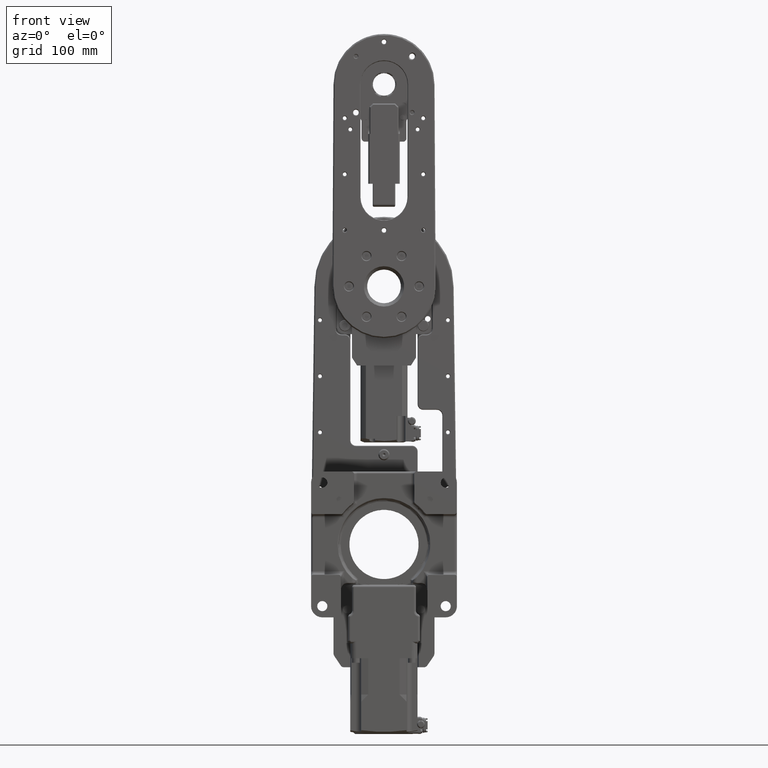
[diagram: clean part render]
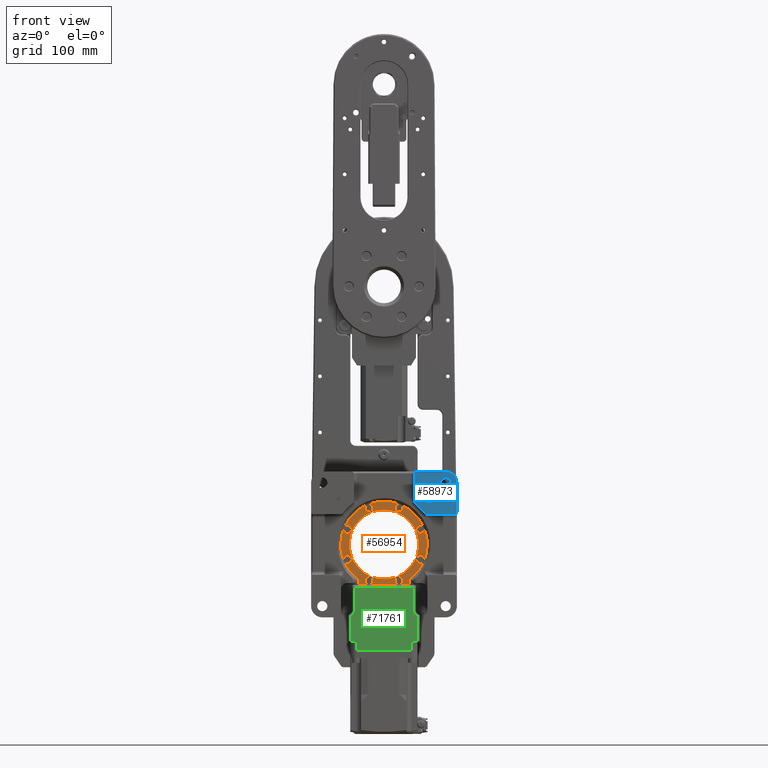
[diagram: same view with three faces highlighted in distinct colors, each labeled with its STEP entity id]
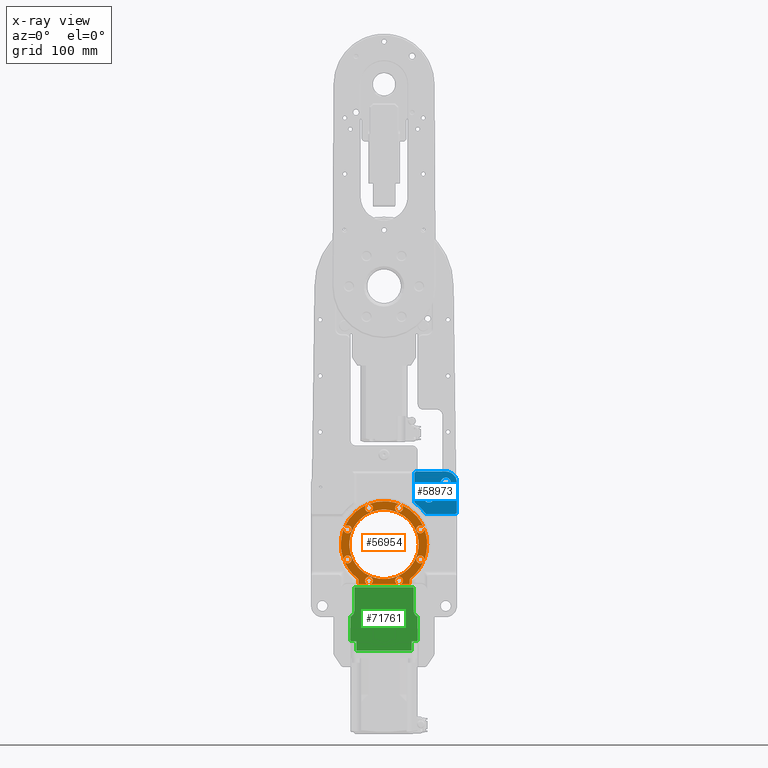
[diagram: x-ray of the same camera — body ghosted, the three highlighted faces saturated]
A machine part, front view with three faces highlighted in distinct colors.
The next image is the same camera in x-ray (body ghosted, the three faces saturated) — at least one of them is partly hidden behind the body in this view.
Their STEP definitions:

[orange] entity #56954 — the highlighted planar face has unit normal (0, 1, 0).
#132 = ORIENTED_EDGE ( 'NONE', *, *, #61156, .F. ) ;
#248 = CARTESIAN_POINT ( 'NONE',  ( 9.892920132785135934, 58.99999999999723599, 32.33578363789494858 ) ) ;
#524 = CARTESIAN_POINT ( 'NONE',  ( 21.99999999999999289, 58.99999999999999289, -35.50000000000000711 ) ) ;
#771 = EDGE_CURVE ( 'NONE', #85445, #35371, #22193, .T. ) ;
#820 = VERTEX_POINT ( 'NONE', #43087 ) ;
#1378 = ORIENTED_EDGE ( 'NONE', *, *, #771, .F. ) ;
#1512 = CARTESIAN_POINT ( 'NONE',  ( 22.99999999999998934, 58.99999999999999289, -30.87474696252588302 ) ) ;
#1653 = DIRECTION ( 'NONE',  ( -1.110223024625155801E-16, -1.000000000000000000, -0.0000000000000000000 ) ) ;
#1918 = EDGE_CURVE ( 'NONE', #6090, #76875, #50208, .T. ) ;
#2222 = CIRCLE ( 'NONE', #14372, 3.500999999929852002 ) ;
#2242 = CARTESIAN_POINT ( 'NONE',  ( 6.550315845288420433E-15, 59.00000000000001421, 0.0000000000000000000 ) ) ;
#2400 = CIRCLE ( 'NONE', #55409, 3.501000000018961167 ) ;
#2609 =( BOUNDED_CURVE ( )  B_SPLINE_CURVE ( 3, ( #38061, #38518, #81638, #45637 ),
 .UNSPECIFIED., .F., .F. ) 
 B_SPLINE_CURVE_WITH_KNOTS ( ( 4, 4 ),
 ( 0.5000000000000000000, 1.000000000000000000 ),
 .UNSPECIFIED. ) 
 CURVE ( )  GEOMETRIC_REPRESENTATION_ITEM ( )  RATIONAL_B_SPLINE_CURVE ( ( 1.000000000000000000, 0.9873379902492167570, 0.9873379902492167570, 1.000000000000000000 ) ) 
 REPRESENTATION_ITEM ( '' )  );
#2622 = EDGE_CURVE ( 'NONE', #86885, #82930, #56347, .T. ) ;
#3124 = DIRECTION ( 'NONE',  ( 0.0000000000000000000, 1.981974836845266014E-15, -1.000000000000000000 ) ) ;
#3151 = CARTESIAN_POINT ( 'NONE',  ( -37.52189938451616058, 59.00000000000000711, -9.989174142899305053 ) ) ;
#3926 = CARTESIAN_POINT ( 'NONE',  ( -5.142026353662969562, 59.00000000000000000, 39.51672184108068109 ) ) ;
#4016 =( BOUNDED_CURVE ( )  B_SPLINE_CURVE ( 3, ( #56609, #87736, #7657, #524 ),
 .UNSPECIFIED., .F., .F. ) 
 B_SPLINE_CURVE_WITH_KNOTS ( ( 4, 4 ),
 ( 0.0000000000000000000, 1.000000000000000000 ),
 .UNSPECIFIED. ) 
 CURVE ( )  GEOMETRIC_REPRESENTATION_ITEM ( )  RATIONAL_B_SPLINE_CURVE ( ( 1.000000000000000000, 0.8047378541243641603, 0.8047378541243641603, 1.000000000000000000 ) ) 
 REPRESENTATION_ITEM ( '' )  );
#4106 = CARTESIAN_POINT ( 'NONE',  ( -38.50000000000000000, 59.00000000000000711, -5.042472952720918222 ) ) ;
#4199 = DIRECTION ( 'NONE',  ( -1.110223024625155801E-16, -1.000000000000000000, -0.0000000000000000000 ) ) ;
#4336 = CARTESIAN_POINT ( 'NONE',  ( -22.58578643762691129, 59.00000000000000711, -35.50000000000000711 ) ) ;
#4399 = VERTEX_POINT ( 'NONE', #47710 ) ;
#4981 = EDGE_CURVE ( 'NONE', #73992, #87410, #63553, .T. ) ;
#5087 = CARTESIAN_POINT ( 'NONE',  ( 14.65219803442319524, 58.99999999999281641, 35.60285231213107693 ) ) ;
#5948 = VERTEX_POINT ( 'NONE', #20553 ) ;
#6090 = VERTEX_POINT ( 'NONE', #57499 ) ;
#6857 = CARTESIAN_POINT ( 'NONE',  ( -35.83678363783511855, 58.99999999992808597, 13.39392013277836213 ) ) ;
#6958 = EDGE_CURVE ( 'NONE', #60929, #76327, #48649, .T. ) ;
#7657 = CARTESIAN_POINT ( 'NONE',  ( 22.58578643762689708, 59.00000000000000000, -35.50000000000000711 ) ) ;
#7775 = EDGE_CURVE ( 'NONE', #63764, #54971, #33377, .T. ) ;
#8272 = CARTESIAN_POINT ( 'NONE',  ( -28.83478363795476795, 58.99999999992808597, 13.39392013277836213 ) ) ;
#8379 = CARTESIAN_POINT ( 'NONE',  ( 22.99999999999999289, 58.99999999999999289, -34.50000000000000000 ) ) ;
#8391 = DIRECTION ( 'NONE',  ( -1.110223024625155801E-16, -1.000000000000000000, -9.909874184333055059E-16 ) ) ;
#8483 = CARTESIAN_POINT ( 'NONE',  ( 14.81434970997197276, 58.99999999999209876, 35.53568688895803263 ) ) ;
#8877 = EDGE_CURVE ( 'NONE', #74876, #27790, #30660, .T. ) ;
#9249 = ORIENTED_EDGE ( 'NONE', *, *, #31625, .F. ) ;
#9329 = DIRECTION ( 'NONE',  ( 1.110223024625155801E-16, 1.000000000000000000, 0.0000000000000000000 ) ) ;
#9579 = ORIENTED_EDGE ( 'NONE', *, *, #36791, .F. ) ;
#9662 = CARTESIAN_POINT ( 'NONE',  ( -32.33578363789494858, 58.99999999992808597, 13.39392013277836213 ) ) ;
#9864 = VERTEX_POINT ( 'NONE', #66505 ) ;
#10047 = LINE ( 'NONE', #17175, #13275 ) ;
#10498 = VERTEX_POINT ( 'NONE', #62987 ) ;
#10775 = CARTESIAN_POINT ( 'NONE',  ( -31.57850368785042861, 59.00000000000000000, 24.30658028033106888 ) ) ;
#11120 = CARTESIAN_POINT ( 'NONE',  ( -38.50000000000000000, 59.00000000000001421, 4.116013085919690234E-13 ) ) ;
#11289 = CARTESIAN_POINT ( 'NONE',  ( 16.89492013277158833, 58.99999999999723599, 32.33578363789494858 ) ) ;
#11932 = CARTESIAN_POINT ( 'NONE',  ( -23.00000000000000711, 59.00000000000000711, -35.08578643762690774 ) ) ;
#12100 = AXIS2_PLACEMENT_3D ( 'NONE', #78197, #86223, #21302 ) ;
#12160 = VERTEX_POINT ( 'NONE', #35715 ) ;
#12253 = CARTESIAN_POINT ( 'NONE',  ( -32.33578363789512622, 58.99999999991794652, -13.39392013277793225 ) ) ;
#12648 = CARTESIAN_POINT ( 'NONE',  ( -35.53568688896314143, 59.00000000000019895, 14.81434970999039180 ) ) ;
#13275 = VECTOR ( 'NONE', #16241, 1000.000000000000000 ) ;
#13307 = AXIS2_PLACEMENT_3D ( 'NONE', #9662, #18183, #76005 ) ;
#13457 =( BOUNDED_CURVE ( )  B_SPLINE_CURVE ( 3, ( #90481, #82010, #54500, #18010 ),
 .UNSPECIFIED., .F., .F. ) 
 B_SPLINE_CURVE_WITH_KNOTS ( ( 4, 4 ),
 ( 0.0000000000000000000, 0.5000000000000000000 ),
 .UNSPECIFIED. ) 
 CURVE ( )  GEOMETRIC_REPRESENTATION_ITEM ( )  RATIONAL_B_SPLINE_CURVE ( ( 1.000000000000000000, 0.9873379902492167570, 0.9873379902492167570, 1.000000000000000000 ) ) 
 REPRESENTATION_ITEM ( '' )  );
#13494 = ORIENTED_EDGE ( 'NONE', *, *, #48974, .F. ) ;
#14016 = CARTESIAN_POINT ( 'NONE',  ( -35.53568688890262450, 58.99999999997154987, -14.81434971005845114 ) ) ;
#14176 = ORIENTED_EDGE ( 'NONE', *, *, #4981, .F. ) ;
#14372 = AXIS2_PLACEMENT_3D ( 'NONE', #12253, #63401, #64357 ) ;
#14893 = AXIS2_PLACEMENT_3D ( 'NONE', #43707, #27601, #50329 ) ;
#15283 = ORIENTED_EDGE ( 'NONE', *, *, #37193, .F. ) ;
#15436 = DIRECTION ( 'NONE',  ( -1.000000000000000000, 0.0000000000000000000, 0.0000000000000000000 ) ) ;
#16241 = DIRECTION ( 'NONE',  ( -0.0000000000000000000, -0.0000000000000000000, -1.000000000000000000 ) ) ;
#16457 = VERTEX_POINT ( 'NONE', #88087 ) ;
#16975 = DIRECTION ( 'NONE',  ( -1.000000000000000000, 1.665334536937733578E-16, 0.0000000000000000000 ) ) ;
#17147 = VERTEX_POINT ( 'NONE', #42250 ) ;
#17175 = CARTESIAN_POINT ( 'NONE',  ( 22.99999999999998579, 59.00000000000000000, 0.0000000000000000000 ) ) ;
#17374 = LINE ( 'NONE', #24025, #39998 ) ;
#17965 = DIRECTION ( 'NONE',  ( 0.0000000000000000000, 1.981974836845266014E-15, -1.000000000000000000 ) ) ;
#18010 = CARTESIAN_POINT ( 'NONE',  ( 38.50000000000002132, 59.00000000000000000, 4.446284828958846538E-11 ) ) ;
#18053 = CARTESIAN_POINT ( 'NONE',  ( -23.00000000000000355, 59.00000000000001421, 0.0000000000000000000 ) ) ;
#18106 = CARTESIAN_POINT ( 'NONE',  ( -22.00000000000000711, 59.00000000000000711, -35.50000000000000711 ) ) ;
#18171 = DIRECTION ( 'NONE',  ( -1.110223024625155801E-16, -1.000000000000000000, -0.0000000000000000000 ) ) ;
#18183 = DIRECTION ( 'NONE',  ( -1.110223024625155801E-16, -1.000000000000000000, -0.0000000000000000000 ) ) ;
#18270 = DIRECTION ( 'NONE',  ( -1.110223024625155801E-16, -1.000000000000000000, -9.909874184608069720E-16 ) ) ;
#18746 = PLANE ( 'NONE',  #39374 ) ;
#18938 = ORIENTED_EDGE ( 'NONE', *, *, #51731, .F. ) ;
#19595 = ORIENTED_EDGE ( 'NONE', *, *, #72188, .F. ) ;
#20315 = CIRCLE ( 'NONE', #83913, 3.500999999929852002 ) ;
#20484 = EDGE_CURVE ( 'NONE', #12160, #5948, #52664, .T. ) ;
#20553 = CARTESIAN_POINT ( 'NONE',  ( 35.83678363791410248, 58.99999999996907007, 13.39392013277793403 ) ) ;
#20970 = CIRCLE ( 'NONE', #14893, 3.500999999993223089 ) ;
#21302 = DIRECTION ( 'NONE',  ( -1.000000000000000000, 0.0000000000000000000, -4.459443383049997299E-15 ) ) ;
#21379 = EDGE_CURVE ( 'NONE', #29626, #26654, #78327, .T. ) ;
#21573 = DIRECTION ( 'NONE',  ( -1.110223024625155801E-16, -1.000000000000000000, -9.909874184647187361E-16 ) ) ;
#22013 = DIRECTION ( 'NONE',  ( -1.110223024625155801E-16, -1.000000000000000000, -0.0000000000000000000 ) ) ;
#22193 = LINE ( 'NONE', #58209, #72204 ) ;
#22366 = CARTESIAN_POINT ( 'NONE',  ( -32.33578363789512622, 58.99999999991794652, -13.39392013277793225 ) ) ;
#22545 = CARTESIAN_POINT ( 'NONE',  ( 13.39392013277836391, 58.99999999999723599, 32.33578363789494858 ) ) ;
#23892 = DIRECTION ( 'NONE',  ( -1.000000000000000000, 0.0000000000000000000, 0.0000000000000000000 ) ) ;
#24025 = CARTESIAN_POINT ( 'NONE',  ( 6.550315845288419644E-15, 59.00000000000000711, -35.50000000000001421 ) ) ;
#24463 = DIRECTION ( 'NONE',  ( 1.665334536937733578E-16, 1.000000000000000000, 0.0000000000000000000 ) ) ;
#24752 = CIRCLE ( 'NONE', #83817, 3.500999999993223089 ) ;
#25645 = CARTESIAN_POINT ( 'NONE',  ( -13.39392013277792337, 58.99999999986361843, 32.33578363789513332 ) ) ;
#25681 = ORIENTED_EDGE ( 'NONE', *, *, #87817, .F. ) ;
#25951 = CARTESIAN_POINT ( 'NONE',  ( -14.81434971006223478, 58.99999999995939959, 35.53568688890253924 ) ) ;
#26098 = EDGE_CURVE ( 'NONE', #820, #4399, #87338, .T. ) ;
#26307 = CARTESIAN_POINT ( 'NONE',  ( -16.89492013271356896, 58.99999999998310329, -32.33578363789494858 ) ) ;
#26654 = VERTEX_POINT ( 'NONE', #54228 ) ;
#27176 = CARTESIAN_POINT ( 'NONE',  ( 24.30658028033051821, 59.00000000000000000, 31.57850368785107520 ) ) ;
#27601 = DIRECTION ( 'NONE',  ( -1.110223024625155801E-16, -1.000000000000000000, -0.0000000000000000000 ) ) ;
#27775 = EDGE_CURVE ( 'NONE', #42518, #63764, #32271, .T. ) ;
#27790 = VERTEX_POINT ( 'NONE', #84200 ) ;
#27919 = CARTESIAN_POINT ( 'NONE',  ( 32.33578363789495569, 59.00000000006362910, -16.89492013283483729 ) ) ;
#27973 = DIRECTION ( 'NONE',  ( -1.110223024625155801E-16, -1.000000000000000000, -9.909874184608069720E-16 ) ) ;
#28344 = CARTESIAN_POINT ( 'NONE',  ( 32.33578363789514043, 58.99999999996907007, 13.39392013277793403 ) ) ;
#28595 = EDGE_CURVE ( 'NONE', #91773, #17147, #13457, .T. ) ;
#29626 = VERTEX_POINT ( 'NONE', #26307 ) ;
#29736 = CARTESIAN_POINT ( 'NONE',  ( 6.550315845288420433E-15, 59.00000000000001421, 0.0000000000000000000 ) ) ;
#30660 = CIRCLE ( 'NONE', #82062, 3.500999999929852002 ) ;
#31154 = CARTESIAN_POINT ( 'NONE',  ( 32.33578363789495569, 59.00000000006362200, -13.39392013277835680 ) ) ;
#31205 = CARTESIAN_POINT ( 'NONE',  ( -32.33578363789494858, 58.99999999992808597, 13.39392013277836213 ) ) ;
#31393 = CARTESIAN_POINT ( 'NONE',  ( 32.85892587324345016, 58.99999999999998579, -21.23518782928342219 ) ) ;
#31625 = EDGE_CURVE ( 'NONE', #27790, #67081, #38381, .T. ) ;
#31870 = AXIS2_PLACEMENT_3D ( 'NONE', #66086, #22013, #23892 ) ;
#32271 =( BOUNDED_CURVE ( )  B_SPLINE_CURVE ( 3, ( #68132, #3151, #4106, #33502 ),
 .UNSPECIFIED., .F., .F. ) 
 B_SPLINE_CURVE_WITH_KNOTS ( ( 4, 4 ),
 ( 0.0000000000000000000, 0.5000000000000000000 ),
 .UNSPECIFIED. ) 
 CURVE ( )  GEOMETRIC_REPRESENTATION_ITEM ( )  RATIONAL_B_SPLINE_CURVE ( ( 1.000000000000000000, 0.9873379902492929183, 0.9873379902492929183, 1.000000000000000000 ) ) 
 REPRESENTATION_ITEM ( '' )  );
#32511 = FACE_OUTER_BOUND ( 'NONE', #38953, .T. ) ;
#32575 = DIRECTION ( 'NONE',  ( 1.110223024625155801E-16, 1.000000000000000000, 0.0000000000000000000 ) ) ;
#32720 = CARTESIAN_POINT ( 'NONE',  ( -38.49999999999994316, 59.00000000000001421, 5.042472952721458235 ) ) ;
#33303 = CARTESIAN_POINT ( 'NONE',  ( -14.65219803441274671, 58.99999999996605027, 35.60285231212527179 ) ) ;
#33377 =( BOUNDED_CURVE ( )  B_SPLINE_CURVE ( 3, ( #67361, #32720, #46959, #53575 ),
 .UNSPECIFIED., .F., .T. ) 
 B_SPLINE_CURVE_WITH_KNOTS ( ( 4, 4 ),
 ( 0.5000000000000000000, 1.000000000000000000 ),
 .UNSPECIFIED. ) 
 CURVE ( )  GEOMETRIC_REPRESENTATION_ITEM ( )  RATIONAL_B_SPLINE_CURVE ( ( 1.000000000000000000, 0.9873379902492921412, 0.9873379902492921412, 1.000000000000000000 ) ) 
 REPRESENTATION_ITEM ( '' )  );
#33502 = CARTESIAN_POINT ( 'NONE',  ( -38.50000000000000000, 59.00000000000001421, 4.116013085919690234E-13 ) ) ;
#33986 = ORIENTED_EDGE ( 'NONE', *, *, #27775, .F. ) ;
#34306 = EDGE_CURVE ( 'NONE', #36376, #87219, #58836, .T. ) ;
#35017 = CARTESIAN_POINT ( 'NONE',  ( 32.33578363789514043, 58.99999999996907007, 13.39392013277793403 ) ) ;
#35371 = VERTEX_POINT ( 'NONE', #89655 ) ;
#35715 = CARTESIAN_POINT ( 'NONE',  ( 28.83478363787617837, 58.99999999996907007, 13.39392013277793403 ) ) ;
#35950 = DIRECTION ( 'NONE',  ( -1.110223024625155801E-16, -1.000000000000000000, -0.0000000000000000000 ) ) ;
#36280 = ORIENTED_EDGE ( 'NONE', *, *, #68428, .F. ) ;
#36357 = CARTESIAN_POINT ( 'NONE',  ( 35.53568688892421079, 58.99999999998515676, 14.81434971006684975 ) ) ;
#36376 = VERTEX_POINT ( 'NONE', #84853 ) ;
#36791 = EDGE_CURVE ( 'NONE', #5948, #91773, #51036, .T. ) ;
#37127 = CARTESIAN_POINT ( 'NONE',  ( 28.57866667493349766, 58.99999999999998579, -26.71894501606115924 ) ) ;
#37193 = EDGE_CURVE ( 'NONE', #76327, #820, #39001, .T. ) ;
#37257 = ORIENTED_EDGE ( 'NONE', *, *, #69293, .F. ) ;
#37749 = ORIENTED_EDGE ( 'NONE', *, *, #28595, .F. ) ;
#38061 = CARTESIAN_POINT ( 'NONE',  ( 38.50000000000002132, 59.00000000000000000, 4.446284828958846538E-11 ) ) ;
#38341 = CARTESIAN_POINT ( 'NONE',  ( -23.00000000000000355, 59.00000000000000711, -34.49999999999999289 ) ) ;
#38381 = CIRCLE ( 'NONE', #68619, 3.500999999929852002 ) ;
#38518 = CARTESIAN_POINT ( 'NONE',  ( 38.50000000000583356, 58.99999999999999289, -5.042472952691843702 ) ) ;
#38953 = EDGE_LOOP ( 'NONE', ( #77277, #14176, #37257, #78293, #132, #19595, #9249, #76961, #36280, #64401, #15283, #61470, #59793, #77897, #33986, #92748, #92689, #58036, #47785, #63717, #67325, #18938, #52753, #50175, #70537, #41825, #66042, #1378, #73470, #25681, #49259, #13494, #51220, #53183, #49332, #37749, #9579, #58641 ) ) ;
#39001 = CIRCLE ( 'NONE', #13307, 3.500999999940177076 ) ;
#39286 = DIRECTION ( 'NONE',  ( -1.000000000000000000, 0.0000000000000000000, 0.0000000000000000000 ) ) ;
#39374 = AXIS2_PLACEMENT_3D ( 'NONE', #47684, #24463, #40561 ) ;
#39737 = CIRCLE ( 'NONE', #76063, 3.501000000056484929 ) ;
#39998 = VECTOR ( 'NONE', #45373, 1000.000000000000000 ) ;
#40561 = DIRECTION ( 'NONE',  ( -1.000000000000000000, 1.665334536937733578E-16, 0.0000000000000000000 ) ) ;
#40606 = AXIS2_PLACEMENT_3D ( 'NONE', #2242, #32575, #45881 ) ;
#41545 = CARTESIAN_POINT ( 'NONE',  ( 21.99999999999999289, 58.99999999999999289, -35.50000000000000711 ) ) ;
#41728 = CARTESIAN_POINT ( 'NONE',  ( 35.53568688894468863, 59.00000000002386003, -14.81434971008100554 ) ) ;
#41825 = ORIENTED_EDGE ( 'NONE', *, *, #45325, .F. ) ;
#42250 = CARTESIAN_POINT ( 'NONE',  ( 38.50000000000002132, 59.00000000000000000, 4.446284828958846538E-11 ) ) ;
#42344 = AXIS2_PLACEMENT_3D ( 'NONE', #31154, #8391, #3124 ) ;
#42518 = VERTEX_POINT ( 'NONE', #50243 ) ;
#42675 = DIRECTION ( 'NONE',  ( 3.468455964604671327E-15, 1.981974836916955326E-15, -1.000000000000000000 ) ) ;
#42902 = CARTESIAN_POINT ( 'NONE',  ( -9.892920132843139314, 58.99999999998310329, -32.33578363789494858 ) ) ;
#43087 = CARTESIAN_POINT ( 'NONE',  ( -35.53568688896314143, 59.00000000000019895, 14.81434970999039180 ) ) ;
#43707 = CARTESIAN_POINT ( 'NONE',  ( 13.39392013277836391, 58.99999999999723599, 32.33578363789494858 ) ) ;
#44504 = EDGE_CURVE ( 'NONE', #9864, #84879, #56869, .T. ) ;
#44716 = AXIS2_PLACEMENT_3D ( 'NONE', #22545, #1653, #15436 ) ;
#45325 = EDGE_CURVE ( 'NONE', #16457, #10498, #52994, .T. ) ;
#45327 = CARTESIAN_POINT ( 'NONE',  ( -35.53568688890262450, 58.99999999997154987, -14.81434971005845114 ) ) ;
#45373 = DIRECTION ( 'NONE',  ( -1.000000000000000000, 1.665334536937733578E-16, 0.0000000000000000000 ) ) ;
#45637 = CARTESIAN_POINT ( 'NONE',  ( 35.60285231215246426, 59.00000000001730882, -14.65219803443372903 ) ) ;
#45653 = VECTOR ( 'NONE', #48377, 1000.000000000000000 ) ;
#45665 = CARTESIAN_POINT ( 'NONE',  ( -32.33578363789512622, 58.99999999991794652, -13.39392013277793225 ) ) ;
#45881 = DIRECTION ( 'NONE',  ( -1.000000000000000000, 2.238352872228138170E-16, 0.0000000000000000000 ) ) ;
#45934 = EDGE_CURVE ( 'NONE', #17147, #9864, #2609, .T. ) ;
#46736 = DIRECTION ( 'NONE',  ( 0.0000000000000000000, 1.981974836916955326E-15, -1.000000000000000000 ) ) ;
#46889 = CIRCLE ( 'NONE', #42344, 3.501000000056484929 ) ;
#46959 = CARTESIAN_POINT ( 'NONE',  ( -37.52189938451599716, 59.00000000000001421, 9.989174142899942765 ) ) ;
#46981 = LINE ( 'NONE', #18053, #45653 ) ;
#47019 = CARTESIAN_POINT ( 'NONE',  ( -35.83678363782497911, 58.99999999991794652, -13.39392013277793225 ) ) ;
#47034 = CARTESIAN_POINT ( 'NONE',  ( -23.00000000000000355, 59.00000000000000711, -34.49999999999999289 ) ) ;
#47102 = DIRECTION ( 'NONE',  ( -1.000000000000000000, 0.0000000000000000000, 0.0000000000000000000 ) ) ;
#47349 = AXIS2_PLACEMENT_3D ( 'NONE', #29736, #9329, #87539 ) ;
#47684 = CARTESIAN_POINT ( 'NONE',  ( 6.550315845288419644E-15, 59.00000000000000711, 0.0000000000000000000 ) ) ;
#47710 = CARTESIAN_POINT ( 'NONE',  ( -14.81434971006223478, 58.99999999995939959, 35.53568688890253924 ) ) ;
#47785 = ORIENTED_EDGE ( 'NONE', *, *, #49340, .F. ) ;
#47836 = AXIS2_PLACEMENT_3D ( 'NONE', #76534, #48093, #83176 ) ;
#48093 = DIRECTION ( 'NONE',  ( -1.110223024625155801E-16, -1.000000000000000000, -9.909874184333055059E-16 ) ) ;
#48377 = DIRECTION ( 'NONE',  ( 0.0000000000000000000, 0.0000000000000000000, 1.000000000000000000 ) ) ;
#48649 = CIRCLE ( 'NONE', #83494, 3.500999999940177076 ) ;
#48742 = DIRECTION ( 'NONE',  ( 0.0000000000000000000, 1.981974836916955326E-15, -1.000000000000000000 ) ) ;
#48831 = DIRECTION ( 'NONE',  ( -1.110223024625155801E-16, -1.000000000000000000, -0.0000000000000000000 ) ) ;
#48974 = EDGE_CURVE ( 'NONE', #87971, #86885, #46889, .T. ) ;
#49259 = ORIENTED_EDGE ( 'NONE', *, *, #2622, .F. ) ;
#49332 = ORIENTED_EDGE ( 'NONE', *, *, #45934, .F. ) ;
#49340 = EDGE_CURVE ( 'NONE', #49704, #58152, #76561, .T. ) ;
#49355 = EDGE_CURVE ( 'NONE', #35371, #16457, #75688, .T. ) ;
#49704 = VERTEX_POINT ( 'NONE', #75404 ) ;
#50020 = CARTESIAN_POINT ( 'NONE',  ( -22.99999999999998934, 59.00000000000000711, -30.87474696252587236 ) ) ;
#50175 = ORIENTED_EDGE ( 'NONE', *, *, #57171, .F. ) ;
#50208 = CIRCLE ( 'NONE', #51698, 3.500999999929852002 ) ;
#50243 = CARTESIAN_POINT ( 'NONE',  ( -35.60285231212428414, 58.99999999997963585, -14.65219803441531177 ) ) ;
#50329 = DIRECTION ( 'NONE',  ( -1.000000000000000000, 0.0000000000000000000, 0.0000000000000000000 ) ) ;
#50487 = DIRECTION ( 'NONE',  ( -9.909874184244316096E-16, 1.981974836848863219E-15, -1.000000000000000000 ) ) ;
#51036 = CIRCLE ( 'NONE', #63130, 3.501000000018961167 ) ;
#51050 = AXIS2_PLACEMENT_3D ( 'NONE', #87161, #48831, #77728 ) ;
#51220 = ORIENTED_EDGE ( 'NONE', *, *, #71625, .F. ) ;
#51278 = DIRECTION ( 'NONE',  ( -1.000000000000000000, 0.0000000000000000000, 0.0000000000000000000 ) ) ;
#51347 = DIRECTION ( 'NONE',  ( -1.000000000000000000, 0.0000000000000000000, 0.0000000000000000000 ) ) ;
#51698 = AXIS2_PLACEMENT_3D ( 'NONE', #45665, #66996, #51347 ) ;
#51731 = EDGE_CURVE ( 'NONE', #26654, #36376, #17374, .T. ) ;
#52664 = CIRCLE ( 'NONE', #70787, 3.501000000018961167 ) ;
#52753 = ORIENTED_EDGE ( 'NONE', *, *, #21379, .F. ) ;
#52994 = LINE ( 'NONE', #88538, #57149 ) ;
#53040 = CIRCLE ( 'NONE', #31870, 3.500999999935212159 ) ;
#53183 = ORIENTED_EDGE ( 'NONE', *, *, #44504, .F. ) ;
#53575 = CARTESIAN_POINT ( 'NONE',  ( -35.60285231212996138, 58.99999999999134559, 14.65219803443321389 ) ) ;
#53621 = DIRECTION ( 'NONE',  ( -1.110223024625155801E-16, -1.000000000000000000, -9.909874184608069720E-16 ) ) ;
#54228 = CARTESIAN_POINT ( 'NONE',  ( -14.89216437640484791, 58.99999999999155875, -35.50000000000001421 ) ) ;
#54461 = DIRECTION ( 'NONE',  ( -1.000000000000000000, 0.0000000000000000000, -1.981974836913920578E-15 ) ) ;
#54500 = CARTESIAN_POINT ( 'NONE',  ( 38.49999999999419487, 58.99999999999999289, 5.042472952780793882 ) ) ;
#54665 = AXIS2_PLACEMENT_3D ( 'NONE', #74867, #4199, #54461 ) ;
#54971 = VERTEX_POINT ( 'NONE', #74540 ) ;
#55232 = EDGE_CURVE ( 'NONE', #87410, #12160, #2400, .T. ) ;
#55409 = AXIS2_PLACEMENT_3D ( 'NONE', #35017, #35950, #71503 ) ;
#55672 = CARTESIAN_POINT ( 'NONE',  ( -13.39392013277792337, 58.99999999986361843, 32.33578363789513332 ) ) ;
#56057 = CARTESIAN_POINT ( 'NONE',  ( 31.57850368779380190, 58.99999999999999289, 24.30658028040491914 ) ) ;
#56347 =( BOUNDED_CURVE ( )  B_SPLINE_CURVE ( 3, ( #60284, #31393, #37127, #1512 ),
 .UNSPECIFIED., .F., .F. ) 
 B_SPLINE_CURVE_WITH_KNOTS ( ( 4, 4 ),
 ( 0.0000000000000000000, 1.000000000000000000 ),
 .UNSPECIFIED. ) 
 CURVE ( )  GEOMETRIC_REPRESENTATION_ITEM ( )  RATIONAL_B_SPLINE_CURVE ( ( 1.000000000000000000, 0.9762404804734032826, 0.9762404804734032826, 1.000000000000000000 ) ) 
 REPRESENTATION_ITEM ( '' )  );
#56503 = CARTESIAN_POINT ( 'NONE',  ( 13.39392013277836391, 58.99999999999723599, 32.33578363789494858 ) ) ;
#56609 = CARTESIAN_POINT ( 'NONE',  ( 22.99999999999999289, 58.99999999999999289, -34.50000000000000000 ) ) ;
#56869 = CIRCLE ( 'NONE', #47836, 3.501000000056484929 ) ;
#56954 = ADVANCED_FACE ( 'NONE', ( #82283, #32511 ), #18746, .F. ) ;
#57149 = VECTOR ( 'NONE', #16975, 1000.000000000000000 ) ;
#57171 = EDGE_CURVE ( 'NONE', #60879, #29626, #53040, .T. ) ;
#57499 = CARTESIAN_POINT ( 'NONE',  ( -28.83478363796527333, 58.99999999991794652, -13.39392013277793225 ) ) ;
#57536 = AXIS2_PLACEMENT_3D ( 'NONE', #86493, #21573, #50487 ) ;
#57580 = CARTESIAN_POINT ( 'NONE',  ( -28.57866667493355095, 59.00000000000000711, -26.71894501606112016 ) ) ;
#57589 = EDGE_CURVE ( 'NONE', #10498, #60879, #62152, .T. ) ;
#58036 = ORIENTED_EDGE ( 'NONE', *, *, #73591, .F. ) ;
#58152 = VERTEX_POINT ( 'NONE', #45327 ) ;
#58209 = CARTESIAN_POINT ( 'NONE',  ( 6.550315845288419644E-15, 59.00000000000000711, -35.50000000000001421 ) ) ;
#58279 = CIRCLE ( 'NONE', #44716, 3.500999999993223089 ) ;
#58635 = CARTESIAN_POINT ( 'NONE',  ( 35.60285231211936008, 58.99999999999936762, 14.65219803450660052 ) ) ;
#58641 = ORIENTED_EDGE ( 'NONE', *, *, #20484, .F. ) ;
#58836 =( BOUNDED_CURVE ( )  B_SPLINE_CURVE ( 3, ( #18106, #4336, #11932, #47034 ),
 .UNSPECIFIED., .F., .F. ) 
 B_SPLINE_CURVE_WITH_KNOTS ( ( 4, 4 ),
 ( 0.0000000000000000000, 1.000000000000000000 ),
 .UNSPECIFIED. ) 
 CURVE ( )  GEOMETRIC_REPRESENTATION_ITEM ( )  RATIONAL_B_SPLINE_CURVE ( ( 1.000000000000000000, 0.8047378541243632721, 0.8047378541243632721, 1.000000000000000000 ) ) 
 REPRESENTATION_ITEM ( '' )  );
#59653 =( BOUNDED_CURVE ( )  B_SPLINE_CURVE ( 3, ( #33303, #3926, #62186, #83554 ),
 .UNSPECIFIED., .F., .F. ) 
 B_SPLINE_CURVE_WITH_KNOTS ( ( 4, 4 ),
 ( 0.0000000000000000000, 1.000000000000000000 ),
 .UNSPECIFIED. ) 
 CURVE ( )  GEOMETRIC_REPRESENTATION_ITEM ( )  RATIONAL_B_SPLINE_CURVE ( ( 1.000000000000000000, 0.9498329404699467071, 0.9498329404699467071, 1.000000000000000000 ) ) 
 REPRESENTATION_ITEM ( '' )  );
#59663 = ORIENTED_EDGE ( 'NONE', *, *, #88296, .T. ) ;
#59793 = ORIENTED_EDGE ( 'NONE', *, *, #80324, .F. ) ;
#60080 = DIRECTION ( 'NONE',  ( -1.110223024625155801E-16, -1.000000000000000000, -0.0000000000000000000 ) ) ;
#60284 = CARTESIAN_POINT ( 'NONE',  ( 35.53568688894468863, 59.00000000002386003, -14.81434971008100554 ) ) ;
#60707 = CARTESIAN_POINT ( 'NONE',  ( 31.00000000000000711, 59.00000000000001421, 3.796405077356795115E-15 ) ) ;
#60879 = VERTEX_POINT ( 'NONE', #42902 ) ;
#60929 = VERTEX_POINT ( 'NONE', #6857 ) ;
#61156 = EDGE_CURVE ( 'NONE', #80660, #90618, #24752, .T. ) ;
#61470 = ORIENTED_EDGE ( 'NONE', *, *, #6958, .F. ) ;
#62152 = CIRCLE ( 'NONE', #54665, 3.500999999935212159 ) ;
#62186 = CARTESIAN_POINT ( 'NONE',  ( 5.142026353665348992, 59.00000000000000000, 39.51672184108036845 ) ) ;
#62987 = CARTESIAN_POINT ( 'NONE',  ( -11.89567588915186391, 58.99999999999154454, -35.50000000000000711 ) ) ;
#63130 = AXIS2_PLACEMENT_3D ( 'NONE', #63751, #82886, #39286 ) ;
#63401 = DIRECTION ( 'NONE',  ( -1.110223024625155801E-16, -1.000000000000000000, -0.0000000000000000000 ) ) ;
#63553 =( BOUNDED_CURVE ( )  B_SPLINE_CURVE ( 3, ( #64130, #27176, #56057, #84981 ),
 .UNSPECIFIED., .F., .F. ) 
 B_SPLINE_CURVE_WITH_KNOTS ( ( 4, 4 ),
 ( 0.0000000000000000000, 1.000000000000000000 ),
 .UNSPECIFIED. ) 
 CURVE ( )  GEOMETRIC_REPRESENTATION_ITEM ( )  RATIONAL_B_SPLINE_CURVE ( ( 1.000000000000000000, 0.9498329404696491673, 0.9498329404696491673, 1.000000000000000000 ) ) 
 REPRESENTATION_ITEM ( '' )  );
#63717 = ORIENTED_EDGE ( 'NONE', *, *, #70895, .F. ) ;
#63751 = CARTESIAN_POINT ( 'NONE',  ( 32.33578363789514043, 58.99999999996907007, 13.39392013277793403 ) ) ;
#63764 = VERTEX_POINT ( 'NONE', #11120 ) ;
#64130 = CARTESIAN_POINT ( 'NONE',  ( 14.81434970997197276, 58.99999999999209876, 35.53568688895803263 ) ) ;
#64357 = DIRECTION ( 'NONE',  ( -1.000000000000000000, 0.0000000000000000000, 0.0000000000000000000 ) ) ;
#64401 = ORIENTED_EDGE ( 'NONE', *, *, #26098, .F. ) ;
#64562 = DIRECTION ( 'NONE',  ( -1.110223024625155801E-16, -1.000000000000000000, -0.0000000000000000000 ) ) ;
#65805 = CARTESIAN_POINT ( 'NONE',  ( -14.65219803441274671, 58.99999999996605027, 35.60285231212527179 ) ) ;
#66042 = ORIENTED_EDGE ( 'NONE', *, *, #49355, .F. ) ;
#66086 = CARTESIAN_POINT ( 'NONE',  ( -13.39392013277835503, 58.99999999998310329, -32.33578363789494858 ) ) ;
#66505 = CARTESIAN_POINT ( 'NONE',  ( 35.60285231215246426, 59.00000000001730882, -14.65219803443372903 ) ) ;
#66996 = DIRECTION ( 'NONE',  ( -1.110223024625155801E-16, -1.000000000000000000, -0.0000000000000000000 ) ) ;
#67081 = VERTEX_POINT ( 'NONE', #65805 ) ;
#67325 = ORIENTED_EDGE ( 'NONE', *, *, #34306, .F. ) ;
#67361 = CARTESIAN_POINT ( 'NONE',  ( -38.50000000000000000, 59.00000000000001421, 4.116013085919690234E-13 ) ) ;
#67859 = CARTESIAN_POINT ( 'NONE',  ( -13.39392013277792337, 58.99999999986361843, 32.33578363789513332 ) ) ;
#68132 = CARTESIAN_POINT ( 'NONE',  ( -35.60285231212428414, 58.99999999997963585, -14.65219803441531177 ) ) ;
#68428 = EDGE_CURVE ( 'NONE', #4399, #74876, #83083, .T. ) ;
#68619 = AXIS2_PLACEMENT_3D ( 'NONE', #25645, #27973, #42675 ) ;
#68879 = VERTEX_POINT ( 'NONE', #8379 ) ;
#69145 = CARTESIAN_POINT ( 'NONE',  ( 32.33578363789495569, 59.00000000006362200, -13.39392013277835680 ) ) ;
#69293 = EDGE_CURVE ( 'NONE', #87220, #73992, #20970, .T. ) ;
#70537 = ORIENTED_EDGE ( 'NONE', *, *, #57589, .F. ) ;
#70660 = EDGE_CURVE ( 'NONE', #68879, #85445, #4016, .T. ) ;
#70787 = AXIS2_PLACEMENT_3D ( 'NONE', #28344, #86613, #92769 ) ;
#70895 = EDGE_CURVE ( 'NONE', #87219, #49704, #46981, .T. ) ;
#71503 = DIRECTION ( 'NONE',  ( -1.000000000000000000, 0.0000000000000000000, -1.981974836866508854E-15 ) ) ;
#71625 = EDGE_CURVE ( 'NONE', #84879, #87971, #39737, .T. ) ;
#71893 = EDGE_CURVE ( 'NONE', #87808, #83155, #88166, .T. ) ;
#72188 = EDGE_CURVE ( 'NONE', #67081, #80660, #59653, .T. ) ;
#72204 = VECTOR ( 'NONE', #85720, 1000.000000000000000 ) ;
#72533 = CARTESIAN_POINT ( 'NONE',  ( -13.39392013277792337, 58.99999999986362553, 28.83478363796527688 ) ) ;
#73470 = ORIENTED_EDGE ( 'NONE', *, *, #70660, .F. ) ;
#73591 = EDGE_CURVE ( 'NONE', #58152, #6090, #20315, .T. ) ;
#73992 = VERTEX_POINT ( 'NONE', #8483 ) ;
#74540 = CARTESIAN_POINT ( 'NONE',  ( -35.60285231212996138, 58.99999999999134559, 14.65219803443321389 ) ) ;
#74867 = CARTESIAN_POINT ( 'NONE',  ( -13.39392013277835503, 58.99999999998310329, -32.33578363789494858 ) ) ;
#74876 = VERTEX_POINT ( 'NONE', #72533 ) ;
#75404 = CARTESIAN_POINT ( 'NONE',  ( -22.99999999999998934, 59.00000000000000711, -30.87474696252587236 ) ) ;
#75688 = CIRCLE ( 'NONE', #57536, 3.501000000050130900 ) ;
#75717 = EDGE_CURVE ( 'NONE', #76875, #42518, #2222, .T. ) ;
#76005 = DIRECTION ( 'NONE',  ( -1.000000000000000000, 0.0000000000000000000, 0.0000000000000000000 ) ) ;
#76063 = AXIS2_PLACEMENT_3D ( 'NONE', #69145, #82894, #17965 ) ;
#76327 = VERTEX_POINT ( 'NONE', #8272 ) ;
#76534 = CARTESIAN_POINT ( 'NONE',  ( 32.33578363789495569, 59.00000000006362200, -13.39392013277835680 ) ) ;
#76561 =( BOUNDED_CURVE ( )  B_SPLINE_CURVE ( 3, ( #50020, #57580, #93127, #14016 ),
 .UNSPECIFIED., .F., .F. ) 
 B_SPLINE_CURVE_WITH_KNOTS ( ( 4, 4 ),
 ( 0.0000000000000000000, 1.000000000000000000 ),
 .UNSPECIFIED. ) 
 CURVE ( )  GEOMETRIC_REPRESENTATION_ITEM ( )  RATIONAL_B_SPLINE_CURVE ( ( 1.000000000000000000, 0.9762404804734027275, 0.9762404804734027275, 1.000000000000000000 ) ) 
 REPRESENTATION_ITEM ( '' )  );
#76875 = VERTEX_POINT ( 'NONE', #47019 ) ;
#76961 = ORIENTED_EDGE ( 'NONE', *, *, #8877, .F. ) ;
#77277 = ORIENTED_EDGE ( 'NONE', *, *, #55232, .F. ) ;
#77728 = DIRECTION ( 'NONE',  ( -1.000000000000000000, 0.0000000000000000000, 0.0000000000000000000 ) ) ;
#77897 = ORIENTED_EDGE ( 'NONE', *, *, #7775, .F. ) ;
#78197 = CARTESIAN_POINT ( 'NONE',  ( -32.33578363789494858, 58.99999999992808597, 13.39392013277836213 ) ) ;
#78208 = EDGE_LOOP ( 'NONE', ( #82541, #59663 ) ) ;
#78293 = ORIENTED_EDGE ( 'NONE', *, *, #88481, .F. ) ;
#78327 = CIRCLE ( 'NONE', #51050, 3.500999999935212159 ) ;
#78347 = AXIS2_PLACEMENT_3D ( 'NONE', #67859, #53621, #48742 ) ;
#80324 = EDGE_CURVE ( 'NONE', #54971, #60929, #93796, .T. ) ;
#80660 = VERTEX_POINT ( 'NONE', #5087 ) ;
#81185 = CARTESIAN_POINT ( 'NONE',  ( -30.99999999999999289, 59.00000000000001421, 0.0000000000000000000 ) ) ;
#81638 = CARTESIAN_POINT ( 'NONE',  ( 37.52189938452181650, 58.99999999999999289, -9.989174142885882901 ) ) ;
#82010 = CARTESIAN_POINT ( 'NONE',  ( 37.52189938449873807, 58.99999999999999289, 9.989174142972574444 ) ) ;
#82062 = AXIS2_PLACEMENT_3D ( 'NONE', #55672, #18270, #46736 ) ;
#82283 = FACE_BOUND ( 'NONE', #78208, .T. ) ;
#82541 = ORIENTED_EDGE ( 'NONE', *, *, #71893, .T. ) ;
#82886 = DIRECTION ( 'NONE',  ( -1.110223024625155801E-16, -1.000000000000000000, -0.0000000000000000000 ) ) ;
#82894 = DIRECTION ( 'NONE',  ( -1.110223024625155801E-16, -1.000000000000000000, -9.909874184333055059E-16 ) ) ;
#82930 = VERTEX_POINT ( 'NONE', #90965 ) ;
#83083 = CIRCLE ( 'NONE', #78347, 3.500999999929852002 ) ;
#83155 = VERTEX_POINT ( 'NONE', #60707 ) ;
#83176 = DIRECTION ( 'NONE',  ( 0.0000000000000000000, 1.981974836845266014E-15, -1.000000000000000000 ) ) ;
#83494 = AXIS2_PLACEMENT_3D ( 'NONE', #31205, #60080, #88060 ) ;
#83554 = CARTESIAN_POINT ( 'NONE',  ( 14.65219803442319524, 58.99999999999281641, 35.60285231213107693 ) ) ;
#83817 = AXIS2_PLACEMENT_3D ( 'NONE', #56503, #18171, #47102 ) ;
#83913 = AXIS2_PLACEMENT_3D ( 'NONE', #22366, #64562, #51278 ) ;
#84200 = CARTESIAN_POINT ( 'NONE',  ( -13.39392013277792337, 58.99999999986361132, 35.83678363782498622 ) ) ;
#84853 = CARTESIAN_POINT ( 'NONE',  ( -22.00000000000000711, 59.00000000000000711, -35.50000000000000711 ) ) ;
#84879 = VERTEX_POINT ( 'NONE', #90452 ) ;
#84981 = CARTESIAN_POINT ( 'NONE',  ( 35.53568688892421079, 58.99999999998515676, 14.81434971006684975 ) ) ;
#85445 = VERTEX_POINT ( 'NONE', #41545 ) ;
#85720 = DIRECTION ( 'NONE',  ( -1.000000000000000000, 1.665334536937733578E-16, 0.0000000000000000000 ) ) ;
#85968 = CIRCLE ( 'NONE', #40606, 31.00000000000000000 ) ;
#86223 = DIRECTION ( 'NONE',  ( -1.110223024625155801E-16, -1.000000000000000000, -0.0000000000000000000 ) ) ;
#86493 = CARTESIAN_POINT ( 'NONE',  ( 13.39392013277794113, 58.99999999999771205, -32.33578363789513332 ) ) ;
#86613 = DIRECTION ( 'NONE',  ( -1.110223024625155801E-16, -1.000000000000000000, -0.0000000000000000000 ) ) ;
#86885 = VERTEX_POINT ( 'NONE', #41728 ) ;
#87161 = CARTESIAN_POINT ( 'NONE',  ( -13.39392013277835503, 58.99999999998310329, -32.33578363789494858 ) ) ;
#87220 = VERTEX_POINT ( 'NONE', #11289 ) ;
#87219 = VERTEX_POINT ( 'NONE', #38341 ) ;
#87338 =( BOUNDED_CURVE ( )  B_SPLINE_CURVE ( 3, ( #12648, #10775, #89902, #25951 ),
 .UNSPECIFIED., .F., .F. ) 
 B_SPLINE_CURVE_WITH_KNOTS ( ( 4, 4 ),
 ( 0.0000000000000000000, 1.000000000000000000 ),
 .UNSPECIFIED. ) 
 CURVE ( )  GEOMETRIC_REPRESENTATION_ITEM ( )  RATIONAL_B_SPLINE_CURVE ( ( 1.000000000000000000, 0.9498329404696549405, 0.9498329404696549405, 1.000000000000000000 ) ) 
 REPRESENTATION_ITEM ( '' )  );
#87410 = VERTEX_POINT ( 'NONE', #36357 ) ;
#87539 = DIRECTION ( 'NONE',  ( -1.000000000000000000, 2.238352872228138170E-16, 0.0000000000000000000 ) ) ;
#87736 = CARTESIAN_POINT ( 'NONE',  ( 22.99999999999999289, 59.00000000000000000, -35.08578643762690774 ) ) ;
#87808 = VERTEX_POINT ( 'NONE', #81185 ) ;
#87817 = EDGE_CURVE ( 'NONE', #82930, #68879, #10047, .T. ) ;
#87971 = VERTEX_POINT ( 'NONE', #27919 ) ;
#88060 = DIRECTION ( 'NONE',  ( -1.000000000000000000, 0.0000000000000000000, 0.0000000000000000000 ) ) ;
#88087 = CARTESIAN_POINT ( 'NONE',  ( 11.89567588901679862, 58.99999999999885603, -35.50000000000001421 ) ) ;
#88166 = CIRCLE ( 'NONE', #47349, 31.00000000000000000 ) ;
#88296 = EDGE_CURVE ( 'NONE', #83155, #87808, #85968, .T. ) ;
#88481 = EDGE_CURVE ( 'NONE', #90618, #87220, #58279, .T. ) ;
#88538 = CARTESIAN_POINT ( 'NONE',  ( 6.550315845288419644E-15, 59.00000000000000711, -35.50000000000001421 ) ) ;
#89655 = CARTESIAN_POINT ( 'NONE',  ( 14.89216437653814928, 58.99999999999221245, -35.50000000000736833 ) ) ;
#89902 = CARTESIAN_POINT ( 'NONE',  ( -24.30658028040462426, 58.99999999999999289, 31.57850368779381611 ) ) ;
#90452 = CARTESIAN_POINT ( 'NONE',  ( 32.33578363789495569, 59.00000000006361489, -9.892920132721865656 ) ) ;
#90481 = CARTESIAN_POINT ( 'NONE',  ( 35.60285231211936008, 58.99999999999936762, 14.65219803450660052 ) ) ;
#90618 = VERTEX_POINT ( 'NONE', #248 ) ;
#90965 = CARTESIAN_POINT ( 'NONE',  ( 22.99999999999998934, 58.99999999999999289, -30.87474696252588302 ) ) ;
#91773 = VERTEX_POINT ( 'NONE', #58635 ) ;
#92689 = ORIENTED_EDGE ( 'NONE', *, *, #1918, .F. ) ;
#92748 = ORIENTED_EDGE ( 'NONE', *, *, #75717, .F. ) ;
#92769 = DIRECTION ( 'NONE',  ( -1.000000000000000000, 0.0000000000000000000, 0.0000000000000000000 ) ) ;
#93127 = CARTESIAN_POINT ( 'NONE',  ( -32.85892587324353542, 59.00000000000000711, -21.23518782928328719 ) ) ;
#93796 = CIRCLE ( 'NONE', #12100, 3.500999999940177076 ) ;

[blue] entity #58973 — the highlighted planar face has unit normal (0, 1, 0).
#103 = VERTEX_POINT ( 'NONE', #88828 ) ;
#986 = VECTOR ( 'NONE', #11715, 1000.000000000000000 ) ;
#1086 = ORIENTED_EDGE ( 'NONE', *, *, #16644, .F. ) ;
#1127 = AXIS2_PLACEMENT_3D ( 'NONE', #58078, #63806, #56209 ) ;
#1412 = EDGE_CURVE ( 'NONE', #34421, #103, #82231, .T. ) ;
#1632 = CARTESIAN_POINT ( 'NONE',  ( 38.99999999999999289, -6.494804694057160239E-15, 39.99999999999998579 ) ) ;
#2270 = ORIENTED_EDGE ( 'NONE', *, *, #75302, .T. ) ;
#3041 = DIRECTION ( 'NONE',  ( 0.0000000000000000000, 0.0000000000000000000, 1.000000000000000000 ) ) ;
#3071 = ORIENTED_EDGE ( 'NONE', *, *, #18265, .F. ) ;
#3135 = AXIS2_PLACEMENT_3D ( 'NONE', #90161, #78199, #5666 ) ;
#3203 = FACE_OUTER_BOUND ( 'NONE', #43696, .T. ) ;
#3525 = VERTEX_POINT ( 'NONE', #38026 ) ;
#3583 = CIRCLE ( 'NONE', #79263, 2.500000000000009326 ) ;
#3646 = CARTESIAN_POINT ( 'NONE',  ( -65.00000000000000000, 1.082467449009526838E-14, 26.99999999999999645 ) ) ;
#4045 = AXIS2_PLACEMENT_3D ( 'NONE', #9227, #52378, #45290 ) ;
#5469 = CARTESIAN_POINT ( 'NONE',  ( 27.79166666666667851, -4.628242233906119750E-15, 36.65546703956842833 ) ) ;
#5503 = EDGE_CURVE ( 'NONE', #69827, #52310, #92915, .T. ) ;
#5666 = DIRECTION ( 'NONE',  ( 1.000000000000000000, -1.665334536937733825E-16, 0.0000000000000000000 ) ) ;
#9227 = CARTESIAN_POINT ( 'NONE',  ( 54.99999999999999289, -1.281138937626660396E-14, 55.00000000000000000 ) ) ;
#9341 = DIRECTION ( 'NONE',  ( -1.110223024625155801E-16, -1.000000000000000000, 0.0000000000000000000 ) ) ;
#9367 = ORIENTED_EDGE ( 'NONE', *, *, #55587, .F. ) ;
#11283 = VERTEX_POINT ( 'NONE', #92005 ) ;
#11302 = CARTESIAN_POINT ( 'NONE',  ( 29.00000000000001421, -4.829470157119430162E-15, 38.24918299781053577 ) ) ;
#11715 = DIRECTION ( 'NONE',  ( -1.000000000000000000, 1.665334536937733578E-16, 0.0000000000000000000 ) ) ;
#12689 = DIRECTION ( 'NONE',  ( 1.110223024625155801E-16, 1.000000000000000000, -0.0000000000000000000 ) ) ;
#14978 = VERTEX_POINT ( 'NONE', #28103 ) ;
#16118 = ORIENTED_EDGE ( 'NONE', *, *, #88696, .F. ) ;
#16403 = CARTESIAN_POINT ( 'NONE',  ( -65.00000000000000000, 1.082467449009526838E-14, 42.49999999999999289 ) ) ;
#16644 = EDGE_CURVE ( 'NONE', #69748, #11283, #34483, .T. ) ;
#16834 = CARTESIAN_POINT ( 'NONE',  ( 65.00000000000000000, -1.082467449009526838E-14, 0.0000000000000000000 ) ) ;
#17859 = AXIS2_PLACEMENT_3D ( 'NONE', #29145, #50475, #58038 ) ;
#17961 = ORIENTED_EDGE ( 'NONE', *, *, #73005, .F. ) ;
#18265 = EDGE_CURVE ( 'NONE', #3525, #41302, #18398, .T. ) ;
#18398 = CIRCLE ( 'NONE', #44132, 2.500000000000009326 ) ;
#19520 = CARTESIAN_POINT ( 'NONE',  ( 43.50000000000000711, -7.105427357600995548E-15, 39.99999999999998579 ) ) ;
#19883 = CARTESIAN_POINT ( 'NONE',  ( 54.99999999999999289, -9.159339953157533570E-15, 65.00000000000000000 ) ) ;
#23593 = CARTESIAN_POINT ( 'NONE',  ( 40.99999999999999289, -6.827871601444706413E-15, 39.99999999999998579 ) ) ;
#23655 = DIRECTION ( 'NONE',  ( 1.665334536937733578E-16, 1.000000000000000000, 0.0000000000000000000 ) ) ;
#24453 = LINE ( 'NONE', #16403, #65363 ) ;
#24566 = CIRCLE ( 'NONE', #3135, 4.499999999999997335 ) ;
#24722 = AXIS2_PLACEMENT_3D ( 'NONE', #48717, #12689, #65260 ) ;
#25526 = DIRECTION ( 'NONE',  ( 1.000000000000000000, -1.665334536937736290E-16, 0.0000000000000000000 ) ) ;
#26623 = EDGE_CURVE ( 'NONE', #32642, #74650, #54426, .T. ) ;
#26866 = CARTESIAN_POINT ( 'NONE',  ( 50.49999999999999289, -8.659739592076214704E-15, 55.00000000000000000 ) ) ;
#27057 = LINE ( 'NONE', #42223, #82501 ) ;
#27208 = VERTEX_POINT ( 'NONE', #63554 ) ;
#28103 = CARTESIAN_POINT ( 'NONE',  ( 40.99999999999999289, -6.827871601444706413E-15, 42.49999999999999289 ) ) ;
#28766 = DIRECTION ( 'NONE',  ( 0.0000000000000000000, 0.0000000000000000000, 1.000000000000000000 ) ) ;
#29039 = CARTESIAN_POINT ( 'NONE',  ( 59.49999999999999289, -9.658940314238854013E-15, 55.00000000000000000 ) ) ;
#29145 = CARTESIAN_POINT ( 'NONE',  ( 63.00000000000000000, -1.049160758270772142E-14, 28.99999999999999645 ) ) ;
#29486 = CARTESIAN_POINT ( 'NONE',  ( 38.24918299781057840, -6.369768545590551164E-15, 26.99999999999998224 ) ) ;
#30054 = ORIENTED_EDGE ( 'NONE', *, *, #67353, .F. ) ;
#30624 = EDGE_CURVE ( 'NONE', #11283, #27208, #61140, .T. ) ;
#30760 = DIRECTION ( 'NONE',  ( -1.000000000000000000, 1.665334536937733578E-16, 0.0000000000000000000 ) ) ;
#30941 = ORIENTED_EDGE ( 'NONE', *, *, #30624, .F. ) ;
#31131 = CARTESIAN_POINT ( 'NONE',  ( 63.00000000000000000, -1.068986169424792862E-14, 26.99999999999999645 ) ) ;
#31367 = VERTEX_POINT ( 'NONE', #29486 ) ;
#31567 = CARTESIAN_POINT ( 'NONE',  ( 28.99999999999999645, -5.027724268659633419E-15, 63.00000000000000000 ) ) ;
#32144 = PLANE ( 'NONE',  #63781 ) ;
#32642 = VERTEX_POINT ( 'NONE', #26866 ) ;
#32965 = DIRECTION ( 'NONE',  ( 0.0000000000000000000, 3.652049423109067827E-16, 1.000000000000000000 ) ) ;
#34421 = VERTEX_POINT ( 'NONE', #71626 ) ;
#34483 = LINE ( 'NONE', #36362, #38978 ) ;
#35742 = LINE ( 'NONE', #42851, #41735 ) ;
#36352 = AXIS2_PLACEMENT_3D ( 'NONE', #11302, #40216, #47802 ) ;
#36362 = CARTESIAN_POINT ( 'NONE',  ( 26.99999999999999645, -4.496403249731880044E-15, -65.00000000000000000 ) ) ;
#38026 = CARTESIAN_POINT ( 'NONE',  ( 38.99999999999999289, -6.494804694057160239E-15, 42.49999999999999289 ) ) ;
#38633 = DIRECTION ( 'NONE',  ( 1.000000000000000000, -1.665334536937733085E-16, 0.0000000000000000000 ) ) ;
#38978 = VECTOR ( 'NONE', #28766, 1000.000000000000000 ) ;
#39259 = FACE_BOUND ( 'NONE', #41837, .T. ) ;
#39986 = DIRECTION ( 'NONE',  ( -1.000000000000000000, 1.665334536937733578E-16, 0.0000000000000000000 ) ) ;
#40011 = DIRECTION ( 'NONE',  ( -1.110223024625155801E-16, -1.000000000000000000, 0.0000000000000000000 ) ) ;
#40088 = DIRECTION ( 'NONE',  ( 1.000000000000000000, -1.665334536937736290E-16, 0.0000000000000000000 ) ) ;
#40216 = DIRECTION ( 'NONE',  ( 1.110223024625155801E-16, 1.000000000000000000, -0.0000000000000000000 ) ) ;
#40604 = CIRCLE ( 'NONE', #17859, 2.000000000000001776 ) ;
#40884 = CIRCLE ( 'NONE', #36352, 1.999999999999998224 ) ;
#41302 = VERTEX_POINT ( 'NONE', #65387 ) ;
#41735 = VECTOR ( 'NONE', #65573, 1000.000000000000000 ) ;
#41837 = EDGE_LOOP ( 'NONE', ( #75431, #84524 ) ) ;
#42223 = CARTESIAN_POINT ( 'NONE',  ( -65.00000000000000000, 1.082467449009526838E-14, 65.00000000000000000 ) ) ;
#42851 = CARTESIAN_POINT ( 'NONE',  ( -65.00000000000000000, 1.082467449009526838E-14, 37.49999999999997868 ) ) ;
#43602 = CIRCLE ( 'NONE', #1127, 46.00000000000000000 ) ;
#43696 = EDGE_LOOP ( 'NONE', ( #30941, #1086, #83696, #30054, #55751, #54623, #81076, #54556, #9367, #2270 ) ) ;
#44132 = AXIS2_PLACEMENT_3D ( 'NONE', #1632, #53301, #38633 ) ;
#44946 = CIRCLE ( 'NONE', #4045, 10.00000000000000178 ) ;
#45290 = DIRECTION ( 'NONE',  ( 0.0000000000000000000, -3.652049423109068813E-16, -1.000000000000000000 ) ) ;
#46740 = DIRECTION ( 'NONE',  ( -1.000000000000000000, 1.665334536937733578E-16, 0.0000000000000000000 ) ) ;
#46820 = LINE ( 'NONE', #3646, #986 ) ;
#47802 = DIRECTION ( 'NONE',  ( 1.000000000000000000, -1.665334536937733825E-16, -3.469446951953617344E-15 ) ) ;
#48717 = CARTESIAN_POINT ( 'NONE',  ( 38.24918299781057840, -6.369768545590551164E-15, 28.99999999999997158 ) ) ;
#50475 = DIRECTION ( 'NONE',  ( 1.110223024625155801E-16, 1.000000000000000000, -1.982541115402064863E-16 ) ) ;
#50684 = CARTESIAN_POINT ( 'NONE',  ( 40.99999999999999289, -6.827871601444706413E-15, 37.49999999999997868 ) ) ;
#52310 = VERTEX_POINT ( 'NONE', #19520 ) ;
#52378 = DIRECTION ( 'NONE',  ( 1.110223024625155801E-16, 1.000000000000000000, -3.652049423109067827E-16 ) ) ;
#53070 = VERTEX_POINT ( 'NONE', #68032 ) ;
#53301 = DIRECTION ( 'NONE',  ( -1.110223024625155801E-16, -1.000000000000000000, 0.0000000000000000000 ) ) ;
#53583 = AXIS2_PLACEMENT_3D ( 'NONE', #31567, #68070, #32965 ) ;
#54426 = CIRCLE ( 'NONE', #57446, 4.499999999999997335 ) ;
#54556 = ORIENTED_EDGE ( 'NONE', *, *, #1412, .T. ) ;
#54623 = ORIENTED_EDGE ( 'NONE', *, *, #90242, .F. ) ;
#54689 = DIRECTION ( 'NONE',  ( 1.000000000000000000, -1.665334536937733825E-16, 0.0000000000000000000 ) ) ;
#55587 = EDGE_CURVE ( 'NONE', #89447, #103, #44946, .T. ) ;
#55751 = ORIENTED_EDGE ( 'NONE', *, *, #72704, .F. ) ;
#56141 = CARTESIAN_POINT ( 'NONE',  ( 40.99999999999999289, -6.827871601444706413E-15, 39.99999999999998579 ) ) ;
#56209 = DIRECTION ( 'NONE',  ( 1.000000000000000000, -1.665334536937733332E-16, 0.0000000000000000000 ) ) ;
#56547 = EDGE_CURVE ( 'NONE', #76238, #69748, #40884, .T. ) ;
#57446 = AXIS2_PLACEMENT_3D ( 'NONE', #76497, #40011, #54689 ) ;
#58038 = DIRECTION ( 'NONE',  ( 0.0000000000000000000, -1.982541115402064124E-16, -1.000000000000000000 ) ) ;
#58078 = CARTESIAN_POINT ( 'NONE',  ( 0.0000000000000000000, 0.0000000000000000000, 0.0000000000000000000 ) ) ;
#58705 = EDGE_CURVE ( 'NONE', #74650, #32642, #24566, .T. ) ;
#58973 = ADVANCED_FACE ( 'NONE', ( #60097, #39259, #3203 ), #32144, .F. ) ;
#59430 = EDGE_CURVE ( 'NONE', #14978, #3525, #24453, .T. ) ;
#60097 = FACE_BOUND ( 'NONE', #60759, .T. ) ;
#60759 = EDGE_LOOP ( 'NONE', ( #16118, #3071, #73165, #17961, #67289 ) ) ;
#61140 = CIRCLE ( 'NONE', #53583, 2.000000000000001776 ) ;
#63554 = CARTESIAN_POINT ( 'NONE',  ( 28.99999999999999645, -4.563392270578622937E-15, 65.00000000000000000 ) ) ;
#63781 = AXIS2_PLACEMENT_3D ( 'NONE', #66783, #23655, #30760 ) ;
#63806 = DIRECTION ( 'NONE',  ( -1.110223024625155801E-16, -1.000000000000000000, 0.0000000000000000000 ) ) ;
#64192 = AXIS2_PLACEMENT_3D ( 'NONE', #23593, #9341, #25526 ) ;
#65260 = DIRECTION ( 'NONE',  ( 1.000000000000000000, -1.665334536937734811E-16, 0.0000000000000000000 ) ) ;
#65363 = VECTOR ( 'NONE', #46740, 1000.000000000000000 ) ;
#65387 = CARTESIAN_POINT ( 'NONE',  ( 38.99999999999999289, -6.494804694057160239E-15, 37.49999999999997868 ) ) ;
#65573 = DIRECTION ( 'NONE',  ( 1.000000000000000000, -1.665334536937733578E-16, -0.0000000000000000000 ) ) ;
#66783 = CARTESIAN_POINT ( 'NONE',  ( -65.00000000000000000, 1.082467449009526838E-14, -65.00000000000000000 ) ) ;
#67289 = ORIENTED_EDGE ( 'NONE', *, *, #5503, .F. ) ;
#67353 = EDGE_CURVE ( 'NONE', #53070, #76238, #43602, .T. ) ;
#68032 = CARTESIAN_POINT ( 'NONE',  ( 36.65546703956847097, -6.104361522857611729E-15, 27.79166666666663588 ) ) ;
#68070 = DIRECTION ( 'NONE',  ( 2.101493582326188109E-16, 1.000000000000000000, -3.652049423109067827E-16 ) ) ;
#68642 = CIRCLE ( 'NONE', #24722, 2.000000000000001776 ) ;
#69081 = EDGE_CURVE ( 'NONE', #34421, #78772, #40604, .T. ) ;
#69748 = VERTEX_POINT ( 'NONE', #93309 ) ;
#69827 = VERTEX_POINT ( 'NONE', #50684 ) ;
#71626 = CARTESIAN_POINT ( 'NONE',  ( 65.00000000000000000, -1.082467449009526838E-14, 28.99999999999999289 ) ) ;
#72704 = EDGE_CURVE ( 'NONE', #31367, #53070, #68642, .T. ) ;
#73005 = EDGE_CURVE ( 'NONE', #52310, #14978, #3583, .T. ) ;
#73165 = ORIENTED_EDGE ( 'NONE', *, *, #59430, .F. ) ;
#74650 = VERTEX_POINT ( 'NONE', #29039 ) ;
#75302 = EDGE_CURVE ( 'NONE', #89447, #27208, #27057, .T. ) ;
#75431 = ORIENTED_EDGE ( 'NONE', *, *, #58705, .F. ) ;
#76238 = VERTEX_POINT ( 'NONE', #5469 ) ;
#76497 = CARTESIAN_POINT ( 'NONE',  ( 54.99999999999999289, -9.159339953157533570E-15, 55.00000000000000000 ) ) ;
#77492 = DIRECTION ( 'NONE',  ( -1.110223024625155801E-16, -1.000000000000000000, 0.0000000000000000000 ) ) ;
#78199 = DIRECTION ( 'NONE',  ( -1.110223024625155801E-16, -1.000000000000000000, 0.0000000000000000000 ) ) ;
#78772 = VERTEX_POINT ( 'NONE', #31131 ) ;
#79263 = AXIS2_PLACEMENT_3D ( 'NONE', #56141, #77492, #40088 ) ;
#81076 = ORIENTED_EDGE ( 'NONE', *, *, #69081, .F. ) ;
#82231 = LINE ( 'NONE', #16834, #92377 ) ;
#82501 = VECTOR ( 'NONE', #39986, 1000.000000000000000 ) ;
#83696 = ORIENTED_EDGE ( 'NONE', *, *, #56547, .F. ) ;
#84524 = ORIENTED_EDGE ( 'NONE', *, *, #26623, .F. ) ;
#88696 = EDGE_CURVE ( 'NONE', #41302, #69827, #35742, .T. ) ;
#88828 = CARTESIAN_POINT ( 'NONE',  ( 65.00000000000000000, -1.265069920164980358E-14, 54.99999999999999289 ) ) ;
#89447 = VERTEX_POINT ( 'NONE', #19883 ) ;
#90161 = CARTESIAN_POINT ( 'NONE',  ( 54.99999999999999289, -9.159339953157533570E-15, 55.00000000000000000 ) ) ;
#90242 = EDGE_CURVE ( 'NONE', #78772, #31367, #46820, .T. ) ;
#92005 = CARTESIAN_POINT ( 'NONE',  ( 26.99999999999999645, -4.496403249731880044E-15, 63.00000000000000000 ) ) ;
#92377 = VECTOR ( 'NONE', #3041, 1000.000000000000000 ) ;
#92915 = CIRCLE ( 'NONE', #64192, 2.500000000000009326 ) ;
#93309 = CARTESIAN_POINT ( 'NONE',  ( 26.99999999999999645, -4.496403249731880044E-15, 38.24918299781053577 ) ) ;

[green] entity #71761 — the highlighted planar face has unit normal (0, 1, -0).
#1312 = VERTEX_POINT ( 'NONE', #87460 ) ;
#2634 = ORIENTED_EDGE ( 'NONE', *, *, #31736, .F. ) ;
#3040 = VERTEX_POINT ( 'NONE', #85357 ) ;
#3182 = DIRECTION ( 'NONE',  ( -1.000000000000000000, 1.665334536937733578E-16, -9.868055584575056055E-79 ) ) ;
#3281 = VECTOR ( 'NONE', #63727, 1000.000000000000000 ) ;
#3742 = CARTESIAN_POINT ( 'NONE',  ( -29.99999999999974420, 1.999999999999972244, -94.50000000000000000 ) ) ;
#4725 = LINE ( 'NONE', #32715, #76634 ) ;
#5196 = EDGE_CURVE ( 'NONE', #69346, #71274, #68695, .T. ) ;
#5899 = LINE ( 'NONE', #47672, #3281 ) ;
#6528 = CARTESIAN_POINT ( 'NONE',  ( -29.17157287525380127, 1.999999999999971800, -86.20000000000000284 ) ) ;
#7086 = CARTESIAN_POINT ( 'NONE',  ( -26.49999999999999289, 1.999999999999979794, -61.54017123013714752 ) ) ;
#9396 = VECTOR ( 'NONE', #75904, 1000.000000000000114 ) ;
#9408 = LINE ( 'NONE', #36476, #33823 ) ;
#10743 = DIRECTION ( 'NONE',  ( 7.590746389766903815E-48, 6.837136522483637541E-32, 1.000000000000000000 ) ) ;
#10964 = EDGE_LOOP ( 'NONE', ( #68618, #45148, #81976, #23584, #37013, #67402, #40595, #39227, #84732, #22092, #2634, #14121, #67294, #80999 ) ) ;
#11378 = DIRECTION ( 'NONE',  ( 1.000000000000000000, -1.665334536937733578E-16, 3.437795856953335690E-16 ) ) ;
#11592 = CARTESIAN_POINT ( 'NONE',  ( -24.69999999999999929, 1.999999999999970912, -86.20000000000000284 ) ) ;
#12166 = VECTOR ( 'NONE', #40671, 1000.000000000000000 ) ;
#12798 = EDGE_CURVE ( 'NONE', #68209, #1312, #40613, .T. ) ;
#12824 = VECTOR ( 'NONE', #74416, 1000.000000000000000 ) ;
#13382 = CARTESIAN_POINT ( 'NONE',  ( -29.99999999999974776, 1.999999999999972244, -85.37157287525407412 ) ) ;
#13495 = VERTEX_POINT ( 'NONE', #73186 ) ;
#14121 = ORIENTED_EDGE ( 'NONE', *, *, #5196, .F. ) ;
#15029 = CARTESIAN_POINT ( 'NONE',  ( 27.82003460189723398, 1.999999999999970024, -63.47250402656629120 ) ) ;
#15302 = VERTEX_POINT ( 'NONE', #39398 ) ;
#17309 = EDGE_CURVE ( 'NONE', #3040, #13495, #67312, .T. ) ;
#19510 = VERTEX_POINT ( 'NONE', #11592 ) ;
#19819 = DIRECTION ( 'NONE',  ( 1.110223024625155801E-16, 1.000000000000000000, -6.837136522483637541E-32 ) ) ;
#20472 = VERTEX_POINT ( 'NONE', #6528 ) ;
#21224 = CARTESIAN_POINT ( 'NONE',  ( 30.00000000000001776, 1.999999999999961808, -86.20000000000001705 ) ) ;
#21611 = CARTESIAN_POINT ( 'NONE',  ( 26.50000000000000355, 1.999999999999968026, -38.19999999999998153 ) ) ;
#22092 = ORIENTED_EDGE ( 'NONE', *, *, #12798, .F. ) ;
#22603 = EDGE_CURVE ( 'NONE', #63362, #3040, #45899, .T. ) ;
#22654 = VERTEX_POINT ( 'NONE', #53446 ) ;
#23584 = ORIENTED_EDGE ( 'NONE', *, *, #22603, .F. ) ;
#24171 = CARTESIAN_POINT ( 'NONE',  ( 24.70000000000000995, 1.999999999999963141, -94.50000000000000000 ) ) ;
#24686 = CARTESIAN_POINT ( 'NONE',  ( 29.17157287525380838, 1.999999999999964473, -86.20000000000000284 ) ) ;
#27403 = DIRECTION ( 'NONE',  ( -1.000000000000000000, 1.665334536937733578E-16, -9.868055584575056055E-79 ) ) ;
#27748 = VERTEX_POINT ( 'NONE', #75233 ) ;
#29262 = PLANE ( 'NONE',  #68504 ) ;
#30196 = EDGE_CURVE ( 'NONE', #15302, #27748, #9408, .T. ) ;
#31736 = EDGE_CURVE ( 'NONE', #71274, #68209, #91488, .T. ) ;
#32715 = CARTESIAN_POINT ( 'NONE',  ( -29.17157287525379061, 1.999999999999971800, -86.20000000000001705 ) ) ;
#33640 = LINE ( 'NONE', #90946, #87981 ) ;
#33662 = DIRECTION ( 'NONE',  ( -0.7071067811865535679, 1.177569344012840311E-16, 0.7071067811865415775 ) ) ;
#33823 = VECTOR ( 'NONE', #67257, 1000.000000000000000 ) ;
#34895 = VERTEX_POINT ( 'NONE', #59001 ) ;
#36476 = CARTESIAN_POINT ( 'NONE',  ( 30.00000000000001421, 1.999999999999961808, -94.50000000000000000 ) ) ;
#37013 = ORIENTED_EDGE ( 'NONE', *, *, #40020, .F. ) ;
#38245 = CARTESIAN_POINT ( 'NONE',  ( 30.00000000000001776, 1.999999999999967581, -64.32347538297979384 ) ) ;
#38499 = VECTOR ( 'NONE', #90448, 1000.000000000000000 ) ;
#39227 = ORIENTED_EDGE ( 'NONE', *, *, #59460, .F. ) ;
#39398 = CARTESIAN_POINT ( 'NONE',  ( 30.00000000000001776, 1.999999999999967581, -64.32347538297979384 ) ) ;
#40020 = EDGE_CURVE ( 'NONE', #27748, #63362, #89623, .T. ) ;
#40199 = EDGE_CURVE ( 'NONE', #34895, #19510, #77765, .T. ) ;
#40595 = ORIENTED_EDGE ( 'NONE', *, *, #41673, .F. ) ;
#40613 = LINE ( 'NONE', #62386, #59151 ) ;
#40671 = DIRECTION ( 'NONE',  ( 1.000000000000000000, -1.665334536937733578E-16, 9.868055584575057254E-79 ) ) ;
#40862 =( BOUNDED_CURVE ( )  B_SPLINE_CURVE ( 3, ( #43490, #86583, #15029, #38245 ),
 .UNSPECIFIED., .F., .F. ) 
 B_SPLINE_CURVE_WITH_KNOTS ( ( 4, 4 ),
 ( 0.0000000000000000000, 1.000000000000000000 ),
 .UNSPECIFIED. ) 
 CURVE ( )  GEOMETRIC_REPRESENTATION_ITEM ( )  RATIONAL_B_SPLINE_CURVE ( ( 1.000000000000000000, 0.8838152158965130178, 0.8838152158965130178, 1.000000000000000000 ) ) 
 REPRESENTATION_ITEM ( '' )  );
#41295 = CARTESIAN_POINT ( 'NONE',  ( -24.69999999999999574, 1.999999999999970912, -94.50000000000000000 ) ) ;
#41673 = EDGE_CURVE ( 'NONE', #22654, #15302, #40862, .T. ) ;
#43147 = CARTESIAN_POINT ( 'NONE',  ( -30.00000000000000355, 1.999999999999978018, -64.32347538297979384 ) ) ;
#43490 = CARTESIAN_POINT ( 'NONE',  ( 26.50000000000000355, 1.999999999999967137, -59.19999999999998863 ) ) ;
#44294 = VERTEX_POINT ( 'NONE', #21611 ) ;
#44922 = EDGE_CURVE ( 'NONE', #20472, #69346, #4725, .T. ) ;
#45148 = ORIENTED_EDGE ( 'NONE', *, *, #80647, .T. ) ;
#45899 = LINE ( 'NONE', #60538, #69494 ) ;
#47672 = CARTESIAN_POINT ( 'NONE',  ( 26.50000000000000355, 1.999999999999962697, -94.50000000000000000 ) ) ;
#49890 = CARTESIAN_POINT ( 'NONE',  ( -26.49999999999999645, 1.999999999999975353, -59.20000000000000284 ) ) ;
#53446 = CARTESIAN_POINT ( 'NONE',  ( 26.50000000000000355, 1.999999999999967137, -59.19999999999998863 ) ) ;
#56291 = LINE ( 'NONE', #21224, #68736 ) ;
#57238 = FACE_OUTER_BOUND ( 'NONE', #10964, .T. ) ;
#58161 = CARTESIAN_POINT ( 'NONE',  ( 30.00000000000001776, 1.999999999999961808, -94.50000000000000000 ) ) ;
#59001 = CARTESIAN_POINT ( 'NONE',  ( -24.69999999999999574, 1.999999999999970912, -94.52916397102480062 ) ) ;
#59151 = VECTOR ( 'NONE', #10743, 1000.000000000000000 ) ;
#59460 = EDGE_CURVE ( 'NONE', #44294, #22654, #5899, .T. ) ;
#60538 = CARTESIAN_POINT ( 'NONE',  ( 30.00000000000001776, 1.999999999999961808, -86.20000000000000284 ) ) ;
#61645 = CARTESIAN_POINT ( 'NONE',  ( 25.18578643762678126, 1.999999999999967137, -90.18578643762698732 ) ) ;
#61971 = LINE ( 'NONE', #83790, #12166 ) ;
#62386 = CARTESIAN_POINT ( 'NONE',  ( -26.49999999999999289, 1.999999999999971356, -94.50000000000000000 ) ) ;
#62463 = CARTESIAN_POINT ( 'NONE',  ( -30.00000000000000355, 1.999999999999978018, -64.32347538297979384 ) ) ;
#63362 = VERTEX_POINT ( 'NONE', #24686 ) ;
#63727 = DIRECTION ( 'NONE',  ( -7.590746389766903815E-48, -6.837136522483637541E-32, -1.000000000000000000 ) ) ;
#64924 = CARTESIAN_POINT ( 'NONE',  ( -26.49999999999999645, 1.999999999999975353, -59.20000000000000284 ) ) ;
#67257 = DIRECTION ( 'NONE',  ( -7.590746389766903815E-48, -6.837136522483637541E-32, -1.000000000000000000 ) ) ;
#67294 = ORIENTED_EDGE ( 'NONE', *, *, #44922, .F. ) ;
#67312 = LINE ( 'NONE', #24171, #12824 ) ;
#67402 = ORIENTED_EDGE ( 'NONE', *, *, #30196, .F. ) ;
#68209 = VERTEX_POINT ( 'NONE', #49890 ) ;
#68504 = AXIS2_PLACEMENT_3D ( 'NONE', #58161, #19819, #92760 ) ;
#68618 = ORIENTED_EDGE ( 'NONE', *, *, #40199, .F. ) ;
#68695 = LINE ( 'NONE', #3742, #38499 ) ;
#68736 = VECTOR ( 'NONE', #27403, 1000.000000000000000 ) ;
#69346 = VERTEX_POINT ( 'NONE', #13382 ) ;
#69494 = VECTOR ( 'NONE', #3182, 1000.000000000000000 ) ;
#71274 = VERTEX_POINT ( 'NONE', #62463 ) ;
#71761 = ADVANCED_FACE ( 'NONE', ( #57238 ), #29262, .F. ) ;
#72046 = CARTESIAN_POINT ( 'NONE',  ( -27.82003460189723043, 1.999999999999979794, -63.47250402656629120 ) ) ;
#73186 = CARTESIAN_POINT ( 'NONE',  ( 24.70000000000000995, 1.999999999999963141, -94.52916397102480062 ) ) ;
#74416 = DIRECTION ( 'NONE',  ( -7.590746389766903815E-48, -6.837136522483637541E-32, -1.000000000000000000 ) ) ;
#74505 = VECTOR ( 'NONE', #91494, 1000.000000000000000 ) ;
#75233 = CARTESIAN_POINT ( 'NONE',  ( 30.00000000000001421, 1.999999999999962697, -85.37157287525388938 ) ) ;
#75904 = DIRECTION ( 'NONE',  ( -0.7071067811865504593, 1.177569344012835381E-16, -0.7071067811865445751 ) ) ;
#76634 = VECTOR ( 'NONE', #33662, 999.9999999999998863 ) ;
#77765 = LINE ( 'NONE', #41295, #74505 ) ;
#80647 = EDGE_CURVE ( 'NONE', #34895, #13495, #61971, .T. ) ;
#80999 = ORIENTED_EDGE ( 'NONE', *, *, #83819, .F. ) ;
#81646 = EDGE_CURVE ( 'NONE', #1312, #44294, #33640, .T. ) ;
#81976 = ORIENTED_EDGE ( 'NONE', *, *, #17309, .F. ) ;
#83790 = CARTESIAN_POINT ( 'NONE',  ( 30.00000000000001776, 1.999999999999961808, -94.52916397102480062 ) ) ;
#83819 = EDGE_CURVE ( 'NONE', #19510, #20472, #56291, .T. ) ;
#84732 = ORIENTED_EDGE ( 'NONE', *, *, #81646, .F. ) ;
#85357 = CARTESIAN_POINT ( 'NONE',  ( 24.70000000000001350, 1.999999999999965805, -86.20000000000000284 ) ) ;
#86583 = CARTESIAN_POINT ( 'NONE',  ( 26.50000000000000000, 1.999999999999970246, -61.54017123013713331 ) ) ;
#87460 = CARTESIAN_POINT ( 'NONE',  ( -26.50000000000000000, 1.999999999999976685, -38.19999999999999574 ) ) ;
#87981 = VECTOR ( 'NONE', #11378, 1000.000000000000000 ) ;
#89623 = LINE ( 'NONE', #61645, #9396 ) ;
#90448 = DIRECTION ( 'NONE',  ( 7.590746389766903815E-48, 6.837136522483637541E-32, 1.000000000000000000 ) ) ;
#90946 = CARTESIAN_POINT ( 'NONE',  ( -6.015850585714494216E-15, 1.999999999999974021, -38.19999999999998863 ) ) ;
#91488 =( BOUNDED_CURVE ( )  B_SPLINE_CURVE ( 3, ( #43147, #72046, #7086, #64924 ),
 .UNSPECIFIED., .F., .F. ) 
 B_SPLINE_CURVE_WITH_KNOTS ( ( 4, 4 ),
 ( 0.0000000000000000000, 1.000000000000000000 ),
 .UNSPECIFIED. ) 
 CURVE ( )  GEOMETRIC_REPRESENTATION_ITEM ( )  RATIONAL_B_SPLINE_CURVE ( ( 1.000000000000000000, 0.8838152158965130178, 0.8838152158965130178, 1.000000000000000000 ) ) 
 REPRESENTATION_ITEM ( '' )  );
#91494 = DIRECTION ( 'NONE',  ( 7.590746389766903815E-48, 6.837136522483637541E-32, 1.000000000000000000 ) ) ;
#92760 = DIRECTION ( 'NONE',  ( -7.590746389766903815E-48, -6.837136522483637541E-32, -1.000000000000000000 ) ) ;